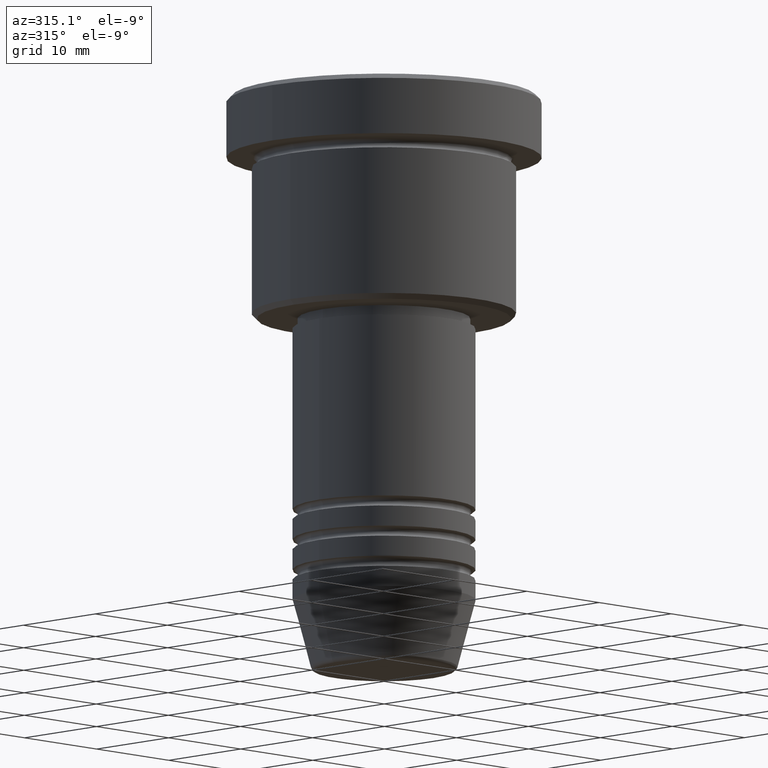
[diagram: clean part render]
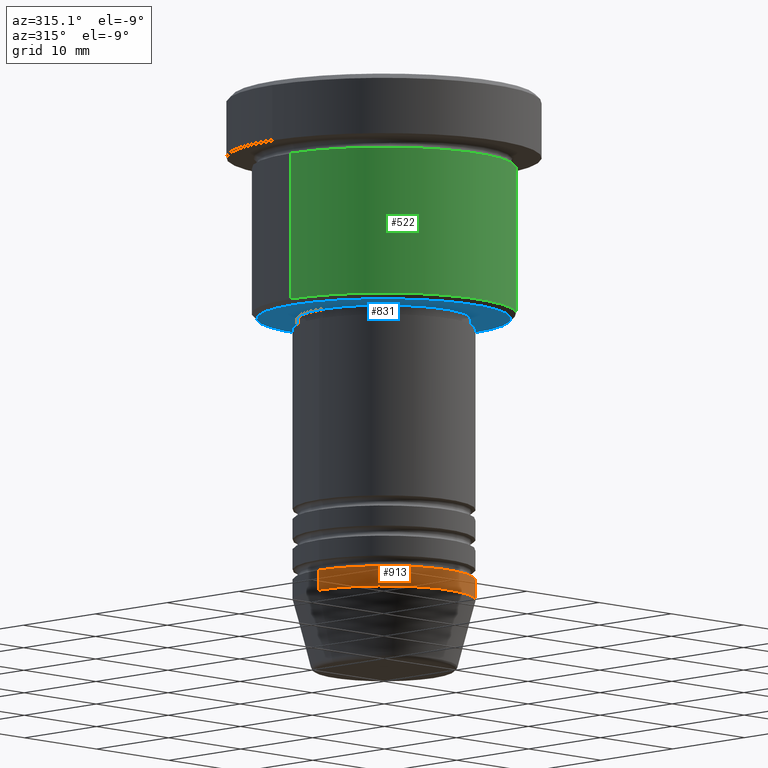
[diagram: same view with three faces highlighted in distinct colors, each labeled with its STEP entity id]
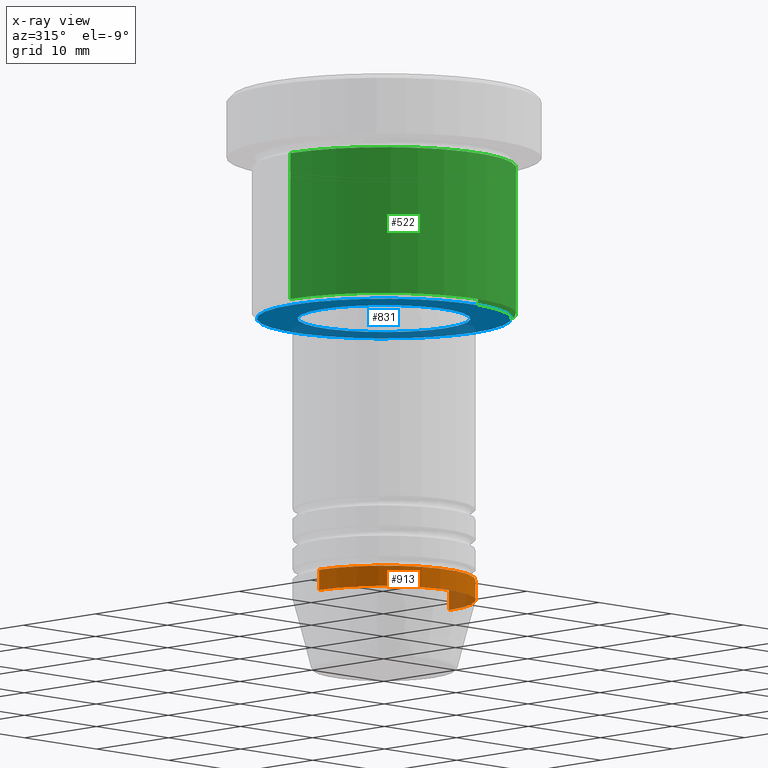
[diagram: x-ray of the same camera — body ghosted, the three highlighted faces saturated]
A machine part, auxiliary view with three faces highlighted in distinct colors.
The next image is the same camera in x-ray (body ghosted, the three faces saturated) — at least one of them is partly hidden behind the body in this view.
Their STEP definitions:

[orange] entity #913 — the highlighted cylindrical surface (partial cylindrical patch) has radius 9 mm, axis along (-0, -0, 1).
#11 = LINE ( 'NONE', #474, #291 ) ;
#17 = DIRECTION ( 'NONE',  ( -0.000000000000000000, -0.000000000000000000, 1.000000000000000000 ) ) ;
#20 = DIRECTION ( 'NONE',  ( -0.000000000000000000, -0.000000000000000000, 1.000000000000000000 ) ) ;
#40 = CARTESIAN_POINT ( 'NONE',  ( 9.000000000000000000, 0.000000000000000000, -48.00000000000000000 ) ) ;
#71 = ORIENTED_EDGE ( 'NONE', *, *, #918, .F. ) ;
#84 = EDGE_CURVE ( 'NONE', #716, #150, #661, .T. ) ;
#112 = CARTESIAN_POINT ( 'NONE',  ( -9.000000000000000000, 1.102182119232617714E-15, -48.00000000000000000 ) ) ;
#150 = VERTEX_POINT ( 'NONE', #40 ) ;
#187 = CARTESIAN_POINT ( 'NONE',  ( -9.000000000000000000, 1.102182119232617714E-15, -50.00000000000000000 ) ) ;
#201 = CYLINDRICAL_SURFACE ( 'NONE', #711, 9.000000000000000000 ) ;
#209 = CARTESIAN_POINT ( 'NONE',  ( 9.000000000000000000, 0.000000000000000000, 0.000000000000000000 ) ) ;
#285 = DIRECTION ( 'NONE',  ( 1.000000000000000000, 0.000000000000000000, 0.000000000000000000 ) ) ;
#291 = VECTOR ( 'NONE', #20, 1000.000000000000000 ) ;
#294 = CARTESIAN_POINT ( 'NONE',  ( 0.000000000000000000, 0.000000000000000000, 0.000000000000000000 ) ) ;
#318 = CARTESIAN_POINT ( 'NONE',  ( 9.000000000000000000, 0.000000000000000000, -50.00000000000000000 ) ) ;
#424 = AXIS2_PLACEMENT_3D ( 'NONE', #1142, #1127, #864 ) ;
#467 = EDGE_CURVE ( 'NONE', #986, #716, #539, .T. ) ;
#474 = CARTESIAN_POINT ( 'NONE',  ( -9.000000000000000000, 1.102182119232617714E-15, 0.000000000000000000 ) ) ;
#475 = DIRECTION ( 'NONE',  ( 1.000000000000000000, 0.000000000000000000, 0.000000000000000000 ) ) ;
#481 = AXIS2_PLACEMENT_3D ( 'NONE', #941, #17, #475 ) ;
#539 = CIRCLE ( 'NONE', #481, 9.000000000000000000 ) ;
#561 = ORIENTED_EDGE ( 'NONE', *, *, #467, .T. ) ;
#631 = ORIENTED_EDGE ( 'NONE', *, *, #84, .T. ) ;
#648 = FACE_OUTER_BOUND ( 'NONE', #1182, .T. ) ;
#659 = EDGE_CURVE ( 'NONE', #914, #150, #944, .T. ) ;
#661 = LINE ( 'NONE', #209, #885 ) ;
#711 = AXIS2_PLACEMENT_3D ( 'NONE', #294, #920, #285 ) ;
#716 = VERTEX_POINT ( 'NONE', #318 ) ;
#758 = DIRECTION ( 'NONE',  ( -0.000000000000000000, -0.000000000000000000, 1.000000000000000000 ) ) ;
#864 = DIRECTION ( 'NONE',  ( 1.000000000000000000, 0.000000000000000000, 0.000000000000000000 ) ) ;
#885 = VECTOR ( 'NONE', #758, 1000.000000000000000 ) ;
#913 = ADVANCED_FACE ( 'NONE', ( #648 ), #201, .T. ) ;
#914 = VERTEX_POINT ( 'NONE', #112 ) ;
#918 = EDGE_CURVE ( 'NONE', #986, #914, #11, .T. ) ;
#920 = DIRECTION ( 'NONE',  ( -0.000000000000000000, -0.000000000000000000, 1.000000000000000000 ) ) ;
#941 = CARTESIAN_POINT ( 'NONE',  ( 0.000000000000000000, 0.000000000000000000, -50.00000000000000000 ) ) ;
#944 = CIRCLE ( 'NONE', #424, 9.000000000000000000 ) ;
#986 = VERTEX_POINT ( 'NONE', #187 ) ;
#1008 = ORIENTED_EDGE ( 'NONE', *, *, #659, .F. ) ;
#1127 = DIRECTION ( 'NONE',  ( -0.000000000000000000, -0.000000000000000000, 1.000000000000000000 ) ) ;
#1142 = CARTESIAN_POINT ( 'NONE',  ( 0.000000000000000000, 0.000000000000000000, -48.00000000000000000 ) ) ;
#1182 = EDGE_LOOP ( 'NONE', ( #71, #561, #631, #1008 ) ) ;

[blue] entity #831 — the highlighted planar face has unit normal (0, 0, -1).
#59 = DIRECTION ( 'NONE',  ( 0.000000000000000000, 0.000000000000000000, -1.000000000000000000 ) ) ;
#60 = DIRECTION ( 'NONE',  ( -0.000000000000000000, -0.000000000000000000, 1.000000000000000000 ) ) ;
#69 = VERTEX_POINT ( 'NONE', #296 ) ;
#152 = CARTESIAN_POINT ( 'NONE',  ( 12.49999999999999112, 0.000000000000000000, -22.00000000000000000 ) ) ;
#155 = EDGE_CURVE ( 'NONE', #799, #640, #178, .T. ) ;
#160 = CIRCLE ( 'NONE', #497, 8.499999999999998224 ) ;
#178 = CIRCLE ( 'NONE', #480, 12.49999999999999112 ) ;
#202 = EDGE_CURVE ( 'NONE', #69, #1152, #749, .T. ) ;
#237 = DIRECTION ( 'NONE',  ( 1.000000000000000000, 0.000000000000000000, 0.000000000000000000 ) ) ;
#293 = EDGE_CURVE ( 'NONE', #1152, #69, #160, .T. ) ;
#296 = CARTESIAN_POINT ( 'NONE',  ( -8.499999999999998224, 1.040949779275249943E-15, -22.00000000000000000 ) ) ;
#314 = DIRECTION ( 'NONE',  ( 1.000000000000000000, 0.000000000000000000, 0.000000000000000000 ) ) ;
#339 = DIRECTION ( 'NONE',  ( -1.000000000000000000, 0.000000000000000000, -0.000000000000000000 ) ) ;
#361 = FACE_OUTER_BOUND ( 'NONE', #1176, .T. ) ;
#373 = DIRECTION ( 'NONE',  ( 0.000000000000000000, 0.000000000000000000, -1.000000000000000000 ) ) ;
#417 = DIRECTION ( 'NONE',  ( -0.000000000000000000, -0.000000000000000000, 1.000000000000000000 ) ) ;
#425 = DIRECTION ( 'NONE',  ( 0.000000000000000000, 0.000000000000000000, -1.000000000000000000 ) ) ;
#439 = PLANE ( 'NONE',  #656 ) ;
#480 = AXIS2_PLACEMENT_3D ( 'NONE', #862, #425, #953 ) ;
#497 = AXIS2_PLACEMENT_3D ( 'NONE', #878, #417, #237 ) ;
#517 = ORIENTED_EDGE ( 'NONE', *, *, #927, .T. ) ;
#544 = FACE_BOUND ( 'NONE', #935, .T. ) ;
#611 = CARTESIAN_POINT ( 'NONE',  ( 0.000000000000000000, 13.00000000000000000, -22.00000000000000000 ) ) ;
#640 = VERTEX_POINT ( 'NONE', #152 ) ;
#652 = ORIENTED_EDGE ( 'NONE', *, *, #155, .T. ) ;
#656 = AXIS2_PLACEMENT_3D ( 'NONE', #611, #59, #339 ) ;
#739 = ORIENTED_EDGE ( 'NONE', *, *, #293, .T. ) ;
#745 = CARTESIAN_POINT ( 'NONE',  ( 0.000000000000000000, 0.000000000000000000, -22.00000000000000000 ) ) ;
#749 = CIRCLE ( 'NONE', #788, 8.499999999999998224 ) ;
#788 = AXIS2_PLACEMENT_3D ( 'NONE', #1134, #60, #314 ) ;
#799 = VERTEX_POINT ( 'NONE', #806 ) ;
#806 = CARTESIAN_POINT ( 'NONE',  ( -12.49999999999999112, 1.561424668912874519E-15, -22.00000000000000000 ) ) ;
#825 = DIRECTION ( 'NONE',  ( -1.000000000000000000, 0.000000000000000000, 0.000000000000000000 ) ) ;
#831 = ADVANCED_FACE ( 'NONE', ( #361, #544 ), #439, .T. ) ;
#855 = ORIENTED_EDGE ( 'NONE', *, *, #202, .T. ) ;
#862 = CARTESIAN_POINT ( 'NONE',  ( 0.000000000000000000, 0.000000000000000000, -22.00000000000000000 ) ) ;
#878 = CARTESIAN_POINT ( 'NONE',  ( 0.000000000000000000, 0.000000000000000000, -22.00000000000000000 ) ) ;
#903 = AXIS2_PLACEMENT_3D ( 'NONE', #745, #373, #825 ) ;
#927 = EDGE_CURVE ( 'NONE', #640, #799, #996, .T. ) ;
#935 = EDGE_LOOP ( 'NONE', ( #739, #855 ) ) ;
#947 = CARTESIAN_POINT ( 'NONE',  ( 8.499999999999998224, 0.000000000000000000, -22.00000000000000000 ) ) ;
#953 = DIRECTION ( 'NONE',  ( -1.000000000000000000, 0.000000000000000000, 0.000000000000000000 ) ) ;
#996 = CIRCLE ( 'NONE', #903, 12.49999999999999112 ) ;
#1134 = CARTESIAN_POINT ( 'NONE',  ( 0.000000000000000000, 0.000000000000000000, -22.00000000000000000 ) ) ;
#1152 = VERTEX_POINT ( 'NONE', #947 ) ;
#1176 = EDGE_LOOP ( 'NONE', ( #517, #652 ) ) ;

[green] entity #522 — the highlighted cylindrical surface (partial cylindrical patch) has radius 13 mm, axis along (-0, -0, 1).
#6 = ORIENTED_EDGE ( 'NONE', *, *, #429, .T. ) ;
#9 = AXIS2_PLACEMENT_3D ( 'NONE', #737, #118, #21 ) ;
#18 = CARTESIAN_POINT ( 'NONE',  ( 0.000000000000000000, 0.000000000000000000, -6.999999999999995559 ) ) ;
#21 = DIRECTION ( 'NONE',  ( 1.000000000000000000, 0.000000000000000000, 0.000000000000000000 ) ) ;
#55 = VERTEX_POINT ( 'NONE', #393 ) ;
#65 = EDGE_CURVE ( 'NONE', #1004, #875, #323, .T. ) ;
#99 = CARTESIAN_POINT ( 'NONE',  ( -13.00000000000000000, 1.592040838891559095E-15, -6.999999999999995559 ) ) ;
#118 = DIRECTION ( 'NONE',  ( -0.000000000000000000, -0.000000000000000000, 1.000000000000000000 ) ) ;
#183 = CARTESIAN_POINT ( 'NONE',  ( 13.00000000000000000, 0.000000000000000000, 0.000000000000000000 ) ) ;
#194 = DIRECTION ( 'NONE',  ( 1.000000000000000000, 0.000000000000000000, 0.000000000000000000 ) ) ;
#198 = AXIS2_PLACEMENT_3D ( 'NONE', #203, #928, #286 ) ;
#203 = CARTESIAN_POINT ( 'NONE',  ( 0.000000000000000000, 0.000000000000000000, -21.49999999999999289 ) ) ;
#230 = CIRCLE ( 'NONE', #198, 13.00000000000000000 ) ;
#266 = VECTOR ( 'NONE', #378, 1000.000000000000000 ) ;
#286 = DIRECTION ( 'NONE',  ( -1.000000000000000000, 0.000000000000000000, 0.000000000000000000 ) ) ;
#323 = CIRCLE ( 'NONE', #478, 13.00000000000000000 ) ;
#330 = VERTEX_POINT ( 'NONE', #704 ) ;
#378 = DIRECTION ( 'NONE',  ( -0.000000000000000000, -0.000000000000000000, 1.000000000000000000 ) ) ;
#393 = CARTESIAN_POINT ( 'NONE',  ( 13.00000000000000000, 0.000000000000000000, -21.49999999999999289 ) ) ;
#429 = EDGE_CURVE ( 'NONE', #55, #875, #916, .T. ) ;
#471 = FACE_OUTER_BOUND ( 'NONE', #1114, .T. ) ;
#478 = AXIS2_PLACEMENT_3D ( 'NONE', #18, #834, #194 ) ;
#482 = EDGE_CURVE ( 'NONE', #330, #55, #230, .T. ) ;
#522 = ADVANCED_FACE ( 'NONE', ( #471 ), #653, .T. ) ;
#523 = ORIENTED_EDGE ( 'NONE', *, *, #1034, .F. ) ;
#543 = ORIENTED_EDGE ( 'NONE', *, *, #65, .F. ) ;
#545 = DIRECTION ( 'NONE',  ( -0.000000000000000000, -0.000000000000000000, 1.000000000000000000 ) ) ;
#653 = CYLINDRICAL_SURFACE ( 'NONE', #9, 13.00000000000000000 ) ;
#704 = CARTESIAN_POINT ( 'NONE',  ( -13.00000000000000000, 1.592040838891559095E-15, -21.49999999999999289 ) ) ;
#737 = CARTESIAN_POINT ( 'NONE',  ( 0.000000000000000000, 0.000000000000000000, 0.000000000000000000 ) ) ;
#834 = DIRECTION ( 'NONE',  ( -0.000000000000000000, -0.000000000000000000, 1.000000000000000000 ) ) ;
#875 = VERTEX_POINT ( 'NONE', #982 ) ;
#916 = LINE ( 'NONE', #183, #1021 ) ;
#928 = DIRECTION ( 'NONE',  ( -0.000000000000000000, -0.000000000000000000, 1.000000000000000000 ) ) ;
#982 = CARTESIAN_POINT ( 'NONE',  ( 13.00000000000000000, 0.000000000000000000, -6.999999999999995559 ) ) ;
#1004 = VERTEX_POINT ( 'NONE', #99 ) ;
#1019 = CARTESIAN_POINT ( 'NONE',  ( -13.00000000000000000, 1.592040838891559095E-15, 0.000000000000000000 ) ) ;
#1021 = VECTOR ( 'NONE', #545, 1000.000000000000000 ) ;
#1034 = EDGE_CURVE ( 'NONE', #330, #1004, #1104, .T. ) ;
#1048 = ORIENTED_EDGE ( 'NONE', *, *, #482, .T. ) ;
#1104 = LINE ( 'NONE', #1019, #266 ) ;
#1114 = EDGE_LOOP ( 'NONE', ( #523, #1048, #6, #543 ) ) ;